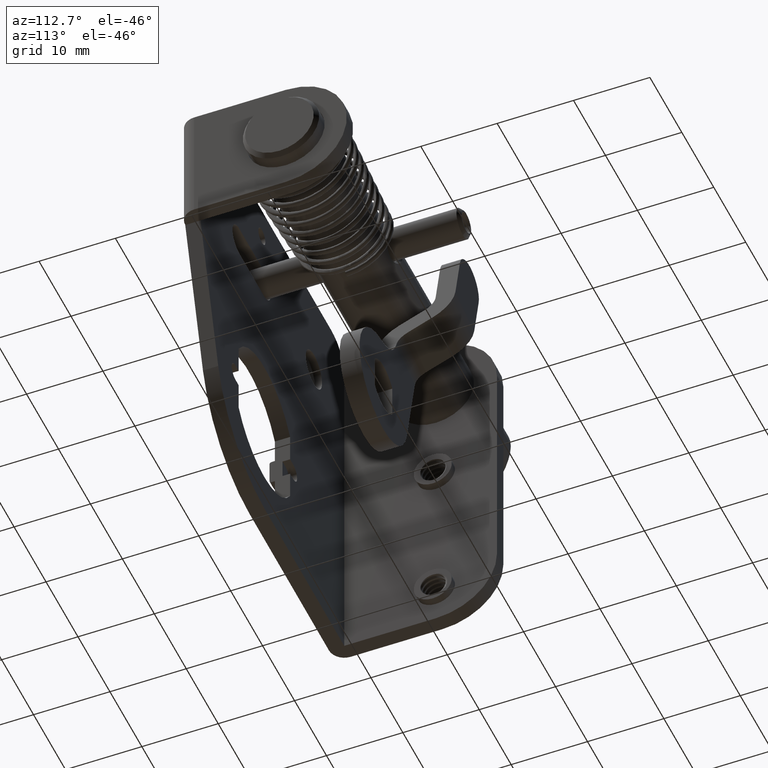
[diagram: clean part render]
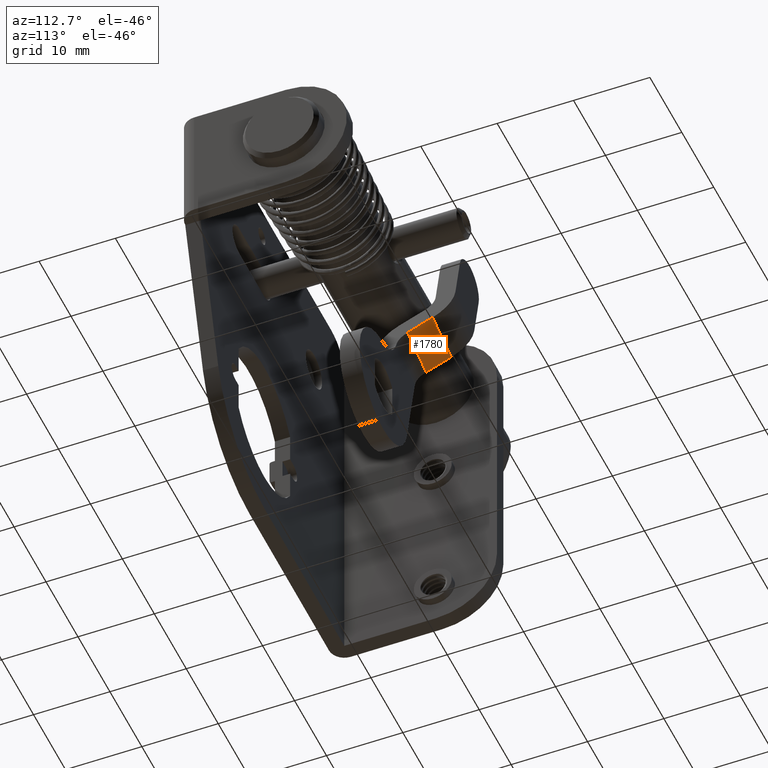
[diagram: same view with one face highlighted and labeled with its STEP entity id]
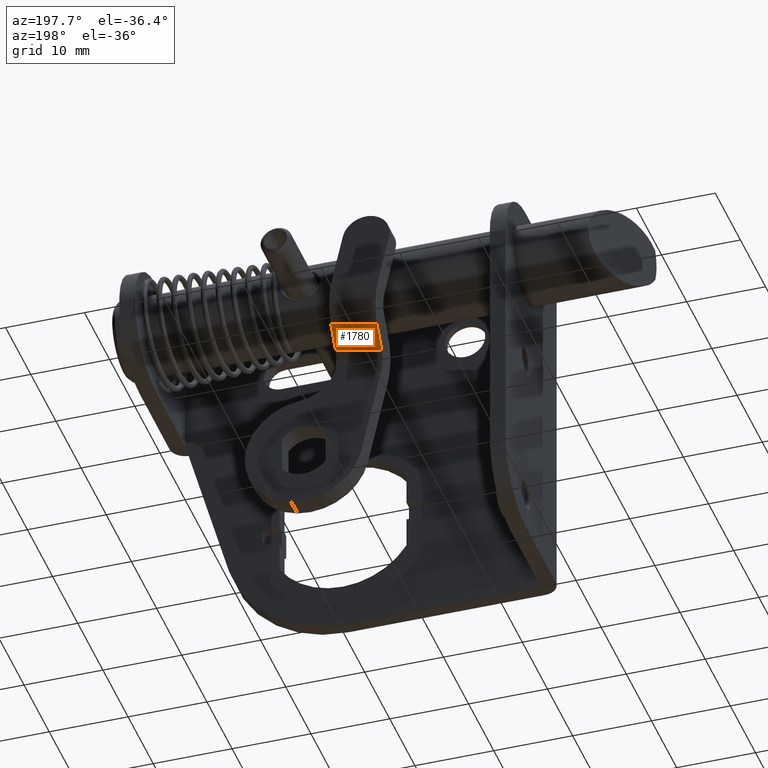
[diagram: same view with one face highlighted and labeled with its STEP entity id]
A machine part, auxiliary view. The second image highlights one B-rep face of the part: STEP entity #1780.
A second angle (auxiliary view) of the same face is appended — the face is thin or edge-on in the first view.
In plain terms, the highlighted planar face has unit normal (0.1874, 0.5, -0.8455).
Its self-contained STEP definition (entity closure, byte-faithful):
#538 = VECTOR ( 'NONE', #9555, 1000.000000000000200 ) ;
#1242 = ORIENTED_EDGE ( 'NONE', *, *, #13203, .F. ) ;
#1762 = EDGE_LOOP ( 'NONE', ( #1242, #13181, #6407, #2407 ) ) ;
#1780 = ADVANCED_FACE ( 'NONE', ( #15078 ), #2011, .T. ) ;
#1910 = CARTESIAN_POINT ( 'NONE',  ( -992.5000000000000000, -4.399999999992900300, 15.54034118446150000 ) ) ;
#2011 = PLANE ( 'NONE',  #15272 ) ;
#2407 = ORIENTED_EDGE ( 'NONE', *, *, #11875, .F. ) ;
#2814 = VERTEX_POINT ( 'NONE', #7158 ) ;
#3384 = LINE ( 'NONE', #8333, #538 ) ;
#3571 = DIRECTION ( 'NONE',  ( -1.473019503289033600E-015, -0.8660254037852458400, 0.4999999999986018400 ) ) ;
#4774 = DIRECTION ( 'NONE',  ( 1.000000000000000000, 0.0000000000000000000, 0.0000000000000000000 ) ) ;
#4864 = VECTOR ( 'NONE', #3571, 1000.000000000000200 ) ;
#5889 = DIRECTION ( 'NONE',  ( 0.0000000000000000000, 0.8660254037852458400, -0.4999999999986018400 ) ) ;
#6211 = LINE ( 'NONE', #14430, #12310 ) ;
#6375 = LINE ( 'NONE', #12068, #9632 ) ;
#6407 = ORIENTED_EDGE ( 'NONE', *, *, #6700, .F. ) ;
#6700 = EDGE_CURVE ( 'NONE', #15113, #2814, #3384, .T. ) ;
#7128 = DIRECTION ( 'NONE',  ( 1.000000000000000000, 0.0000000000000000000, 0.0000000000000000000 ) ) ;
#7158 = CARTESIAN_POINT ( 'NONE',  ( 7.500000000000000000, -1.300000000003591800, 13.75055534998649900 ) ) ;
#8333 = CARTESIAN_POINT ( 'NONE',  ( 7.500000000000000000, 5.629165124605979300, 9.750000000048689900 ) ) ;
#9088 = DIRECTION ( 'NONE',  ( 0.0000000000000000000, -0.4999999999986018400, -0.8660254037852458400 ) ) ;
#9555 = DIRECTION ( 'NONE',  ( -0.0000000000000000000, 0.8660254037852458400, -0.4999999999986018400 ) ) ;
#9632 = VECTOR ( 'NONE', #4774, 1000.000000000000000 ) ;
#10048 = CARTESIAN_POINT ( 'NONE',  ( 7.500000000000000000, -4.399999999992900300, 15.54034118446150000 ) ) ;
#10713 = CARTESIAN_POINT ( 'NONE',  ( 1.500000000139174900, -1.300000000003591800, 13.75055534998649900 ) ) ;
#10882 = CARTESIAN_POINT ( 'NONE',  ( 1.500000000139170000, -4.399999999994170400, 15.54034118446220000 ) ) ;
#10978 = LINE ( 'NONE', #10882, #4864 ) ;
#11787 = VERTEX_POINT ( 'NONE', #10713 ) ;
#11875 = EDGE_CURVE ( 'NONE', #15083, #15113, #6211, .T. ) ;
#12068 = CARTESIAN_POINT ( 'NONE',  ( -992.5000000000000000, -1.300000000003591800, 13.75055534998649900 ) ) ;
#12310 = VECTOR ( 'NONE', #7128, 1000.000000000000000 ) ;
#13181 = ORIENTED_EDGE ( 'NONE', *, *, #14528, .T. ) ;
#13203 = EDGE_CURVE ( 'NONE', #11787, #15083, #10978, .T. ) ;
#13666 = CARTESIAN_POINT ( 'NONE',  ( 1.500000000139180000, -4.399999999992740400, 15.54034118446175100 ) ) ;
#14430 = CARTESIAN_POINT ( 'NONE',  ( -992.5000000000000000, -4.399999999992900300, 15.54034118446150000 ) ) ;
#14528 = EDGE_CURVE ( 'NONE', #11787, #2814, #6375, .T. ) ;
#15078 = FACE_OUTER_BOUND ( 'NONE', #1762, .T. ) ;
#15083 = VERTEX_POINT ( 'NONE', #13666 ) ;
#15113 = VERTEX_POINT ( 'NONE', #10048 ) ;
#15272 = AXIS2_PLACEMENT_3D ( 'NONE', #1910, #9088, #5889 ) ;